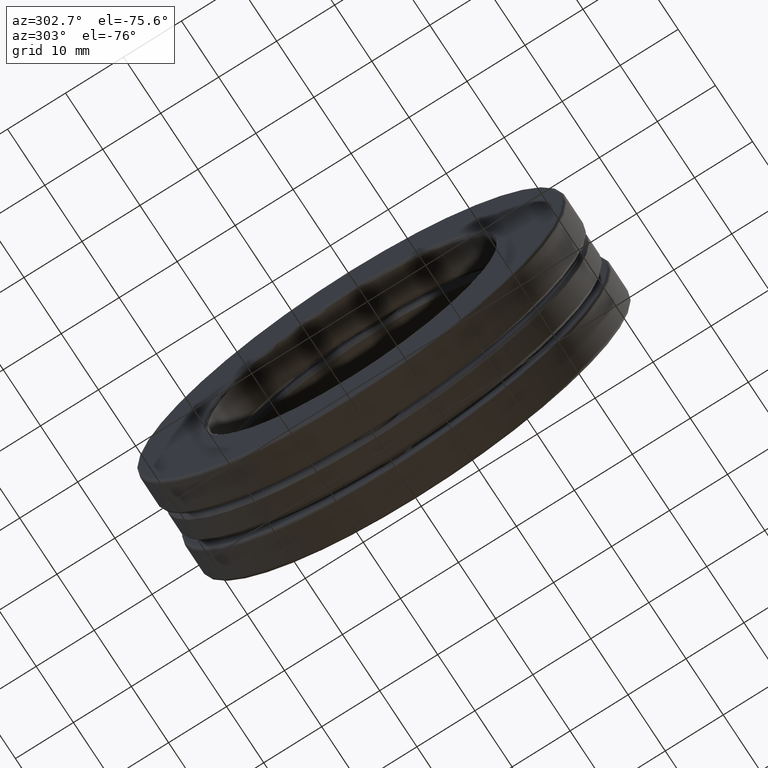
[diagram: clean part render]
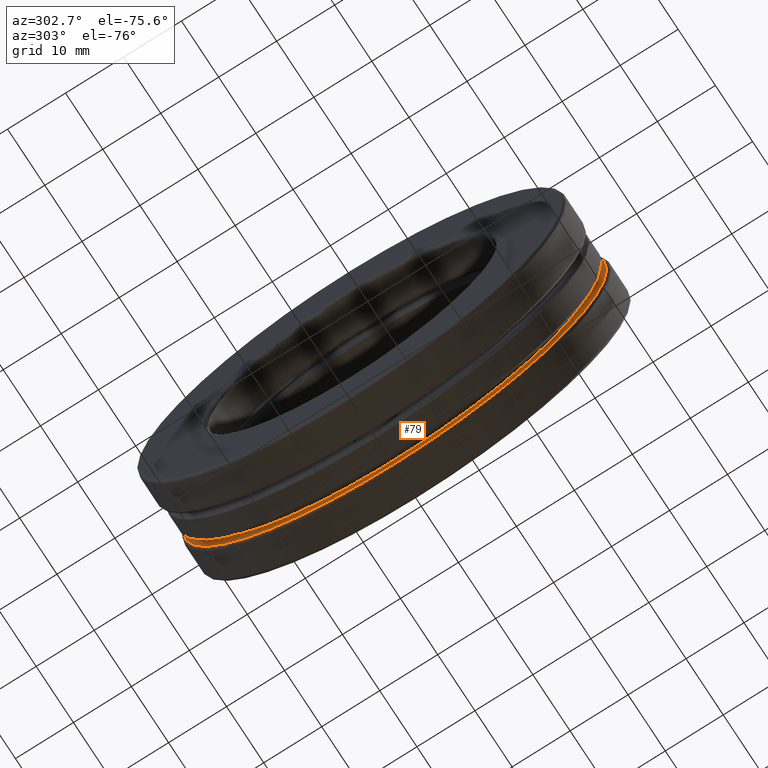
[diagram: same view with one face highlighted and labeled with its STEP entity id]
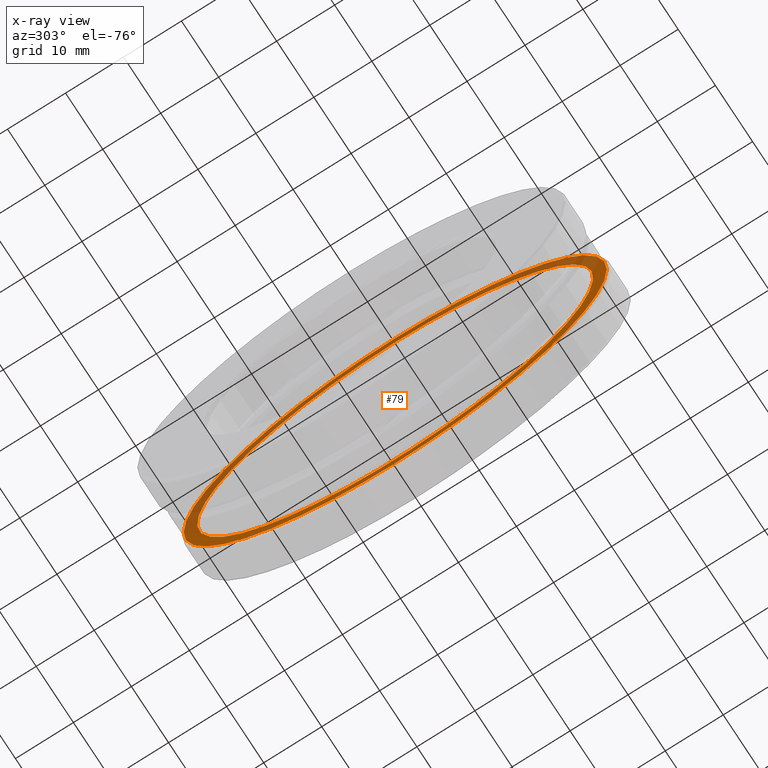
[diagram: x-ray of the same camera — body ghosted, the highlighted face saturated]
A machine part, auxiliary view. The second image highlights one B-rep face of the part: STEP entity #79.
The next image is the same camera in x-ray: the body ghosted, the highlighted face saturated — about 45% of this face is hidden behind the body in this view.
In plain terms, the highlighted planar face has unit normal (1, 0, 0).
Its self-contained STEP definition (entity closure, byte-faithful):
#19 = DIRECTION ( 'NONE',  ( 0.0000000000000000000, 0.0000000000000000000, -1.000000000000000000 ) ) ;
#24 = CARTESIAN_POINT ( 'NONE',  ( 0.1181690300000006300, 0.0000000000000000000, 1.436499999999999400 ) ) ;
#34 = AXIS2_PLACEMENT_3D ( 'NONE', #138, #704, #506 ) ;
#60 = EDGE_CURVE ( 'NONE', #725, #725, #721, .T. ) ;
#67 = FACE_OUTER_BOUND ( 'NONE', #341, .T. ) ;
#79 = ADVANCED_FACE ( 'NONE', ( #498, #67 ), #312, .F. ) ;
#103 = ORIENTED_EDGE ( 'NONE', *, *, #726, .T. ) ;
#111 = DIRECTION ( 'NONE',  ( 1.000000000000000000, 0.0000000000000000000, 0.0000000000000000000 ) ) ;
#138 = CARTESIAN_POINT ( 'NONE',  ( 0.1181690300000006300, 0.0000000000000000000, 0.0000000000000000000 ) ) ;
#161 = ORIENTED_EDGE ( 'NONE', *, *, #60, .F. ) ;
#215 = AXIS2_PLACEMENT_3D ( 'NONE', #549, #111, #19 ) ;
#246 = VERTEX_POINT ( 'NONE', #24 ) ;
#312 = PLANE ( 'NONE',  #215 ) ;
#341 = EDGE_LOOP ( 'NONE', ( #103 ) ) ;
#348 = AXIS2_PLACEMENT_3D ( 'NONE', #433, #815, #679 ) ;
#374 = CIRCLE ( 'NONE', #34, 1.436499999999999400 ) ;
#433 = CARTESIAN_POINT ( 'NONE',  ( 0.1181690300000006300, 0.0000000000000000000, 0.0000000000000000000 ) ) ;
#498 = FACE_BOUND ( 'NONE', #617, .T. ) ;
#506 = DIRECTION ( 'NONE',  ( 0.0000000000000000000, 0.0000000000000000000, 1.000000000000000000 ) ) ;
#514 = CARTESIAN_POINT ( 'NONE',  ( 0.1181690300000006300, 0.0000000000000000000, 1.344791312443223100 ) ) ;
#549 = CARTESIAN_POINT ( 'NONE',  ( 0.1181690300000006300, 0.0000000000000000000, 0.0000000000000000000 ) ) ;
#617 = EDGE_LOOP ( 'NONE', ( #161 ) ) ;
#679 = DIRECTION ( 'NONE',  ( 0.0000000000000000000, 0.0000000000000000000, 1.000000000000000000 ) ) ;
#704 = DIRECTION ( 'NONE',  ( -1.000000000000000000, -0.0000000000000000000, -0.0000000000000000000 ) ) ;
#721 = CIRCLE ( 'NONE', #348, 1.344791312443223100 ) ;
#725 = VERTEX_POINT ( 'NONE', #514 ) ;
#726 = EDGE_CURVE ( 'NONE', #246, #246, #374, .T. ) ;
#815 = DIRECTION ( 'NONE',  ( -1.000000000000000000, -0.0000000000000000000, -0.0000000000000000000 ) ) ;